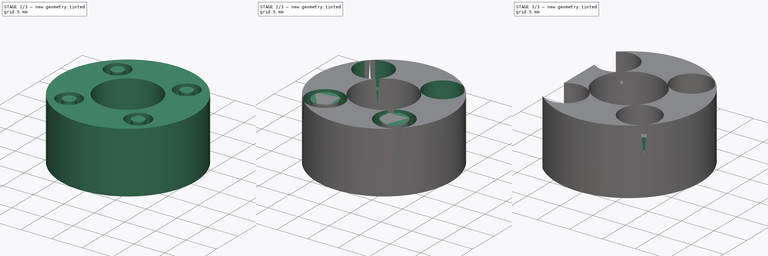
[diagram: build sequence overview — one tinted view per stage of 3, left to right]
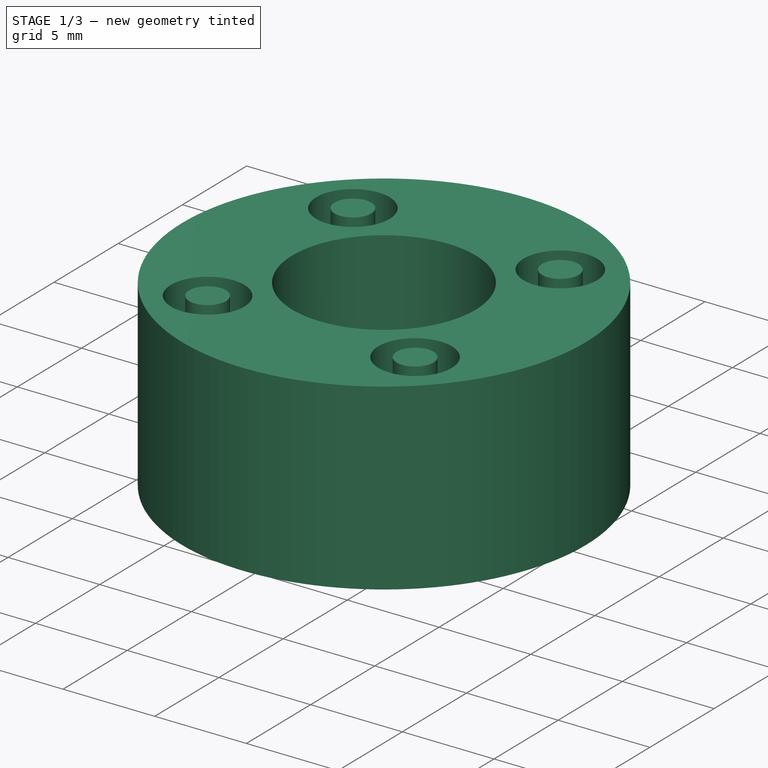
[diagram: stage 1 of 3 — iso view after this stage's code; geometry added in this stage tinted green]
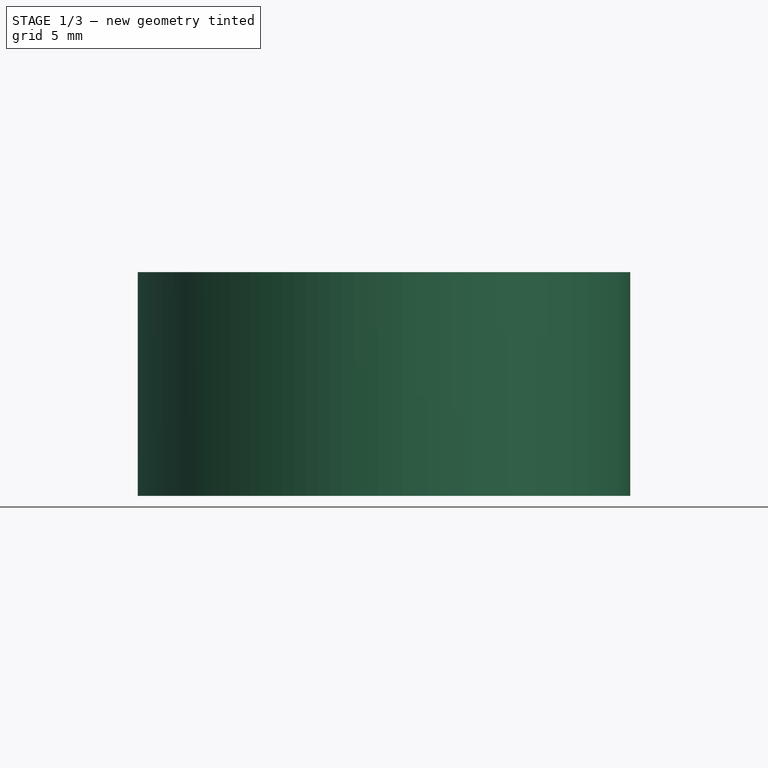
[diagram: stage 1 of 3 — front view after this stage's code; geometry added in this stage tinted green]
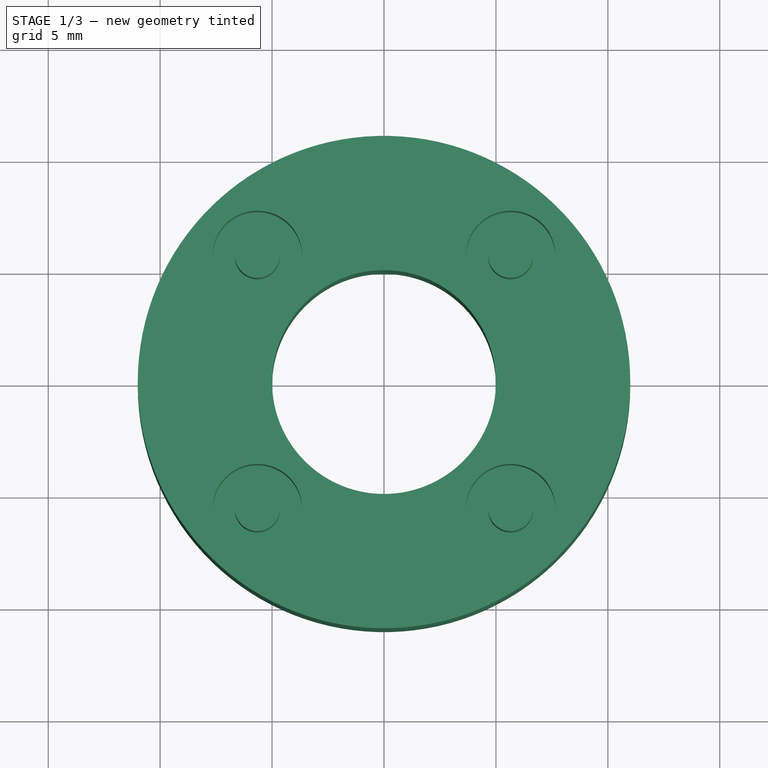
[diagram: stage 1 of 3 — top view after this stage's code; geometry added in this stage tinted green]
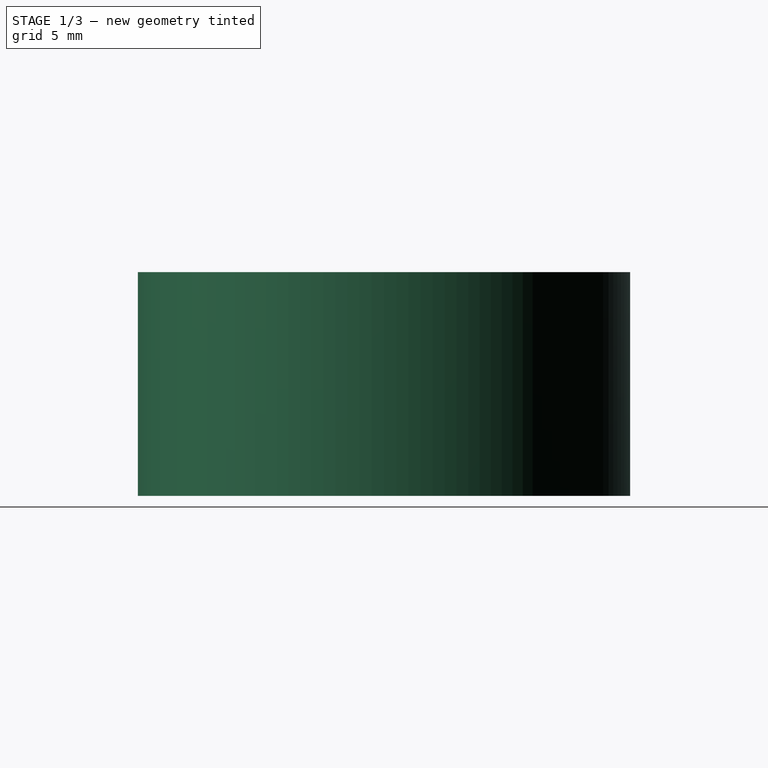
[diagram: stage 1 of 3 — right view after this stage's code; geometry added in this stage tinted green]
FCSTD DOCUMENT  (FreeCAD 0.18R4 (GitTag))
Label: ZAntiWobbler2
License: All rights reserved
LicenseURL: http://en.wikipedia.org/wiki/All_rights_reserved
objects: PartDesign::Pocket×7, Sketcher::SketchObject×4, Spreadsheet::Sheet×1, PartDesign::Pad×1, PartDesign::Body×1
note: 21 computed .brp shape members not serialized (recipe doc carries the construction recipe); baked Part::Feature solids carry a one-line shape summary decoded from their .brp

FEATURE [Spreadsheet::Sheet] Spreadsheet  label="Parameters"
  cells = A1=ZScrewRadiusWithStopScrew; B1(ZScrewRadiusWithStopScrew)==5mm; A2=M3ThreadRadius; B2(M3ThreadRadius)==2mm; A3=M3HeadRadius; B3(M3HeadRadius)==1mm; A4=M3HeadHeight; B4(M3HeadHeight)==4mm; A5=AntiWobblerHeight; B5(AntiWobblerHeight)==10mm; A6=AntiWobblerRadius; B6(AntiWobblerRadius)==11mm; A7=AntiWobblerRadiusToCut; B7(AntiWobblerRadiusToCut)==7.55mm; A8=AntiWobblerScrewSeparation; B8(AntiWobblerScrewSeparation)==16mm
FEATURE [Sketcher::SketchObject] Sketch
  MapMode = 5
  Support = -> [XY_Plane]
  expr: Constraints[1] = Parameters.AntiWobblerRadius
  sketch-geometry (1):
    g0: Circle CenterX=0 CenterY=0 CenterZ=0 NormalX=0 NormalY=0 NormalZ=1 AngleXU=0 Radius=11
  constraints (2):
    c: Coincident(g0,g-1)
    c: Radius(g0) = 11
FEATURE [PartDesign::Pad] Pad
  Length = 10
  Length2 = 100
  Profile = -> Sketch
  Type = 0
  expr: Length = Parameters.AntiWobblerHeight
FEATURE [Sketcher::SketchObject] Sketch001
  MapMode = 5
  Placement = pos=(0,0,10) rot=(0,0,1;0rad)
  Support = -> [Pad]
  expr: Constraints[1] = Parameters.ZScrewRadiusWithStopScrew
  sketch-geometry (1):
    g0: Circle CenterX=0 CenterY=0 CenterZ=0 NormalX=0 NormalY=0 NormalZ=1 AngleXU=0 Radius=5
  constraints (2):
    c: Coincident(g0,g-1)
    c: Radius(g0) = 5
FEATURE [PartDesign::Pocket] Pocket
  BaseFeature = -> Pad
  Length = 5
  Length2 = 100
  Profile = -> Sketch001
  Type = 1
FEATURE [Sketcher::SketchObject] Sketch002
  MapMode = 5
  Placement = pos=(0,0,10) rot=(0,0,1;0rad)
  Support = -> [Pocket]
  expr: Constraints[20] = Parameters.AntiWobblerScrewSeparation
  expr: Constraints[7] = Parameters.M3ThreadRadius
  expr: Constraints[4] = Parameters.M3ThreadRadius
  expr: Constraints[8] = Parameters.M3HeadRadius
  expr: Constraints[11] = Parameters.M3HeadRadius
  expr: Constraints[10] = Parameters.M3ThreadRadius
  expr: Constraints[5] = Parameters.M3HeadRadius
  expr: Constraints[2] = Parameters.M3HeadRadius
  expr: Constraints[1] = Parameters.M3ThreadRadius
  sketch-geometry (10):
    g0: Circle CenterX=-5.65685 CenterY=5.65685 CenterZ=0 NormalX=0 NormalY=0 NormalZ=1 AngleXU=0 Radius=2
    g1: Circle CenterX=-5.65685 CenterY=5.65685 CenterZ=0 NormalX=0 NormalY=0 NormalZ=1 AngleXU=0 Radius=1
    g2: Circle CenterX=5.65685 CenterY=5.65685 CenterZ=0 NormalX=0 NormalY=0 NormalZ=1 AngleXU=0 Radius=2
    g3: Circle CenterX=5.65685 CenterY=5.65685 CenterZ=0 NormalX=0 NormalY=0 NormalZ=1 AngleXU=0 Radius=1
    g4: Circle CenterX=5.65685 CenterY=-5.65685 CenterZ=0 NormalX=0 NormalY=0 NormalZ=1 AngleXU=0 Radius=1
    g5: Circle CenterX=5.65685 CenterY=-5.65685 CenterZ=0 NormalX=0 NormalY=0 NormalZ=1 AngleXU=0 Radius=2
    g6: Circle CenterX=-5.65685 CenterY=-5.65685 CenterZ=0 NormalX=0 NormalY=0 NormalZ=1 AngleXU=0 Radius=1
    g7: Circle CenterX=-5.65685 CenterY=-5.65685 CenterZ=0 NormalX=0 NormalY=0 NormalZ=1 AngleXU=0 Radius=2
    g8: LineSegment [constr] StartX=-5.65685 StartY=5.65685 StartZ=0 EndX=5.65685 EndY=-5.65685 EndZ=0
    g9: LineSegment [constr] StartX=5.65685 StartY=5.65685 StartZ=0 EndX=-5.65685 EndY=-5.65685 EndZ=0
  constraints (21):
    c: Coincident(g1,g0)
    c: Radius(g0) = 2
    c: Radius(g1) = 1
    c: Coincident(g3,g2)
    c: Radius(g2) = 2
    c: Radius(g3) = 1
    c: Coincident(g6,g7)
    c: Radius(g7) = 2
    c: Radius(g6) = 1
    c: Coincident(g4,g5)
    c: Radius(g5) = 2
    c: Radius(g4) = 1
    c: Symmetric(g0,g2,g-2)
    c: Symmetric(g4,g6,g-2)
    c: Symmetric(g2,g4,g-1)
    c: Coincident(g0,g8)
    c: Coincident(g9,g2)
    c: Coincident(g9,g6)
    c: Coincident(g8,g4)
    c: Perpendicular(g9,g8)
    c: Distance(g0,g4) = 16
FEATURE [PartDesign::Pocket] Pocket001
  BaseFeature = -> Pocket
  Length = 4
  Length2 = 100
  Profile = -> Sketch002
  Type = 0
  expr: Length = Parameters.M3HeadHeight
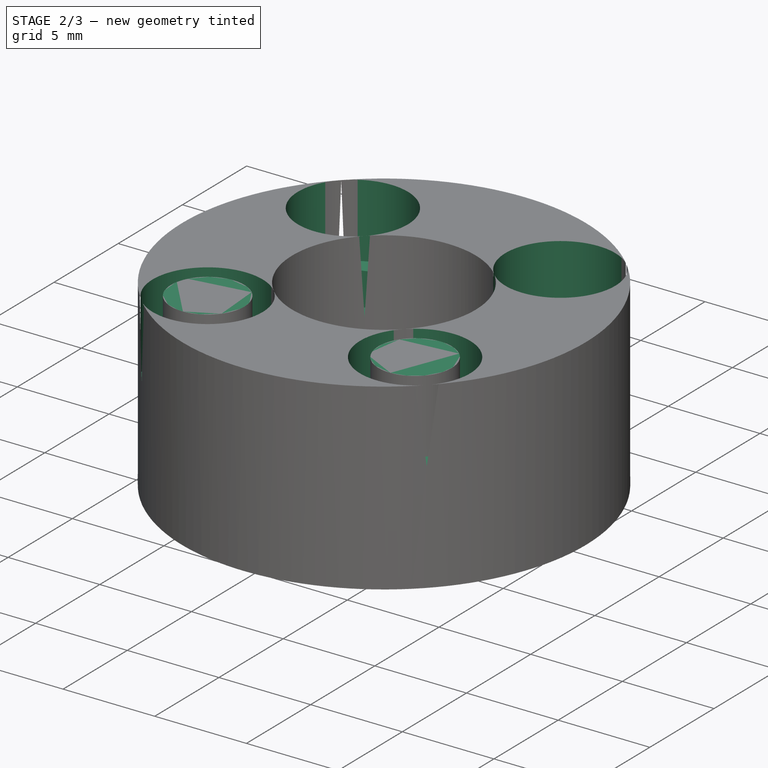
[diagram: stage 2 of 3 — iso view after this stage's code; geometry added in this stage tinted green]
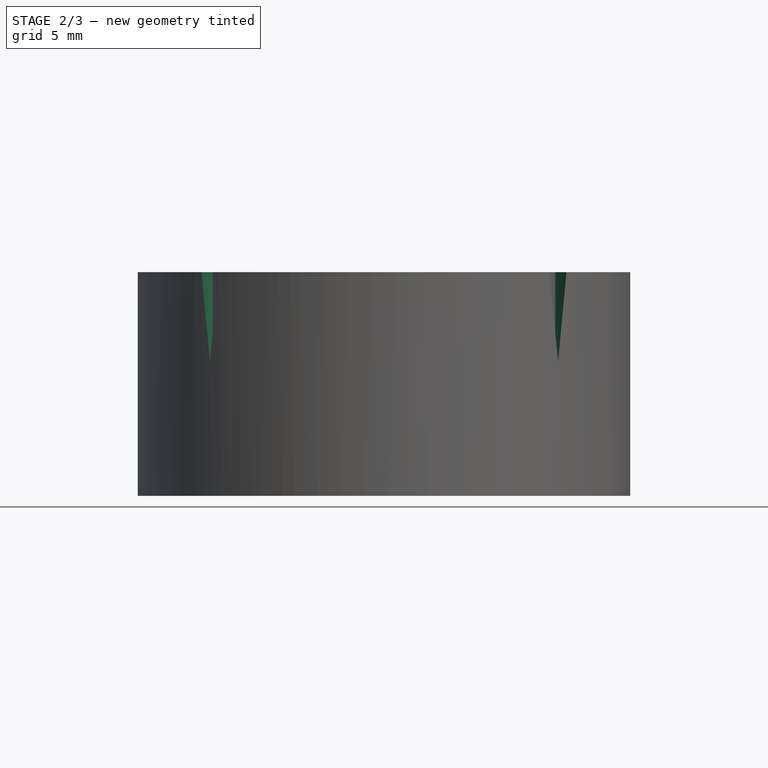
[diagram: stage 2 of 3 — front view after this stage's code; geometry added in this stage tinted green]
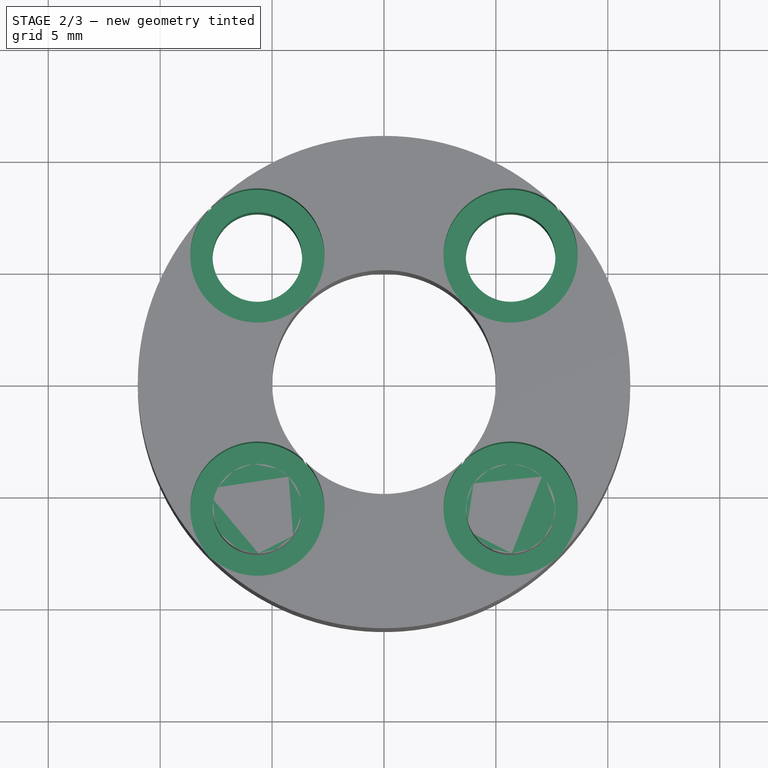
[diagram: stage 2 of 3 — top view after this stage's code; geometry added in this stage tinted green]
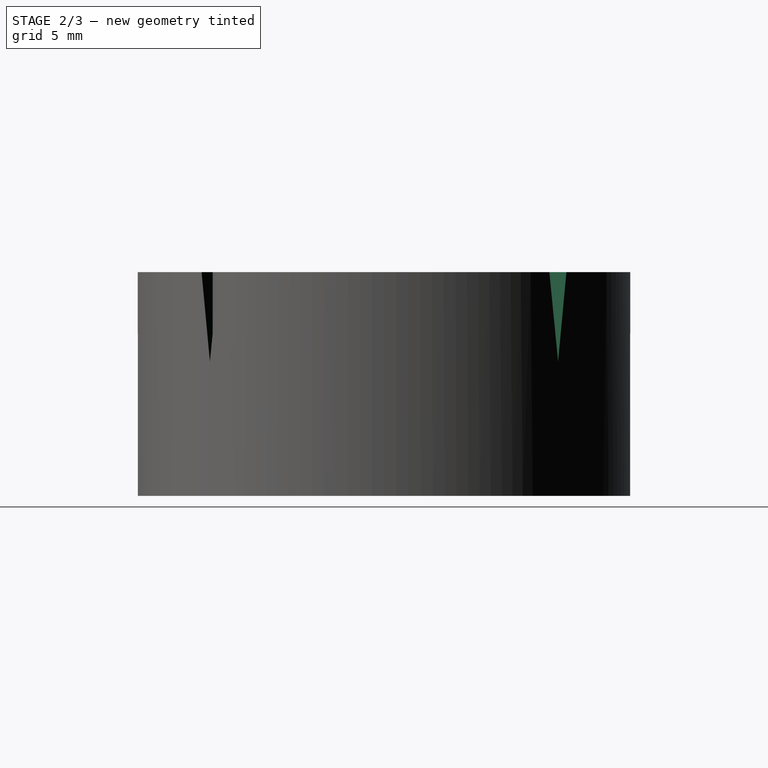
[diagram: stage 2 of 3 — right view after this stage's code; geometry added in this stage tinted green]
FEATURE [PartDesign::Pocket] Pocket002
  BaseFeature = -> Pocket001
  Length = 5
  Length2 = 100
  Profile = -> Pocket001 [Face3]
  Type = 1
FEATURE [PartDesign::Pocket] Pocket003
  BaseFeature = -> Pocket002
  Length = 5
  Length2 = 100
  Profile = -> Pocket002 [Face29]
  Type = 1
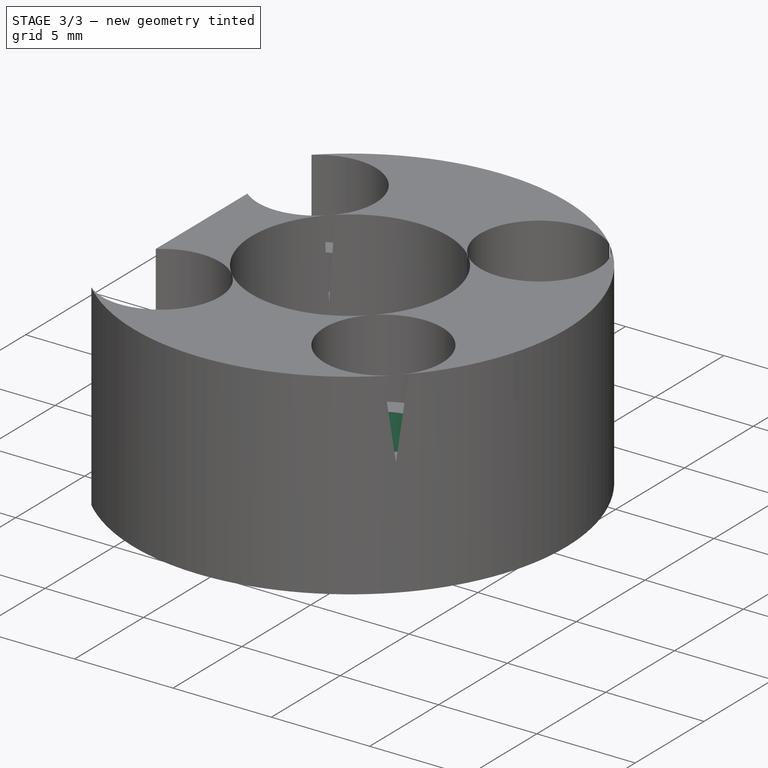
[diagram: stage 3 of 3 — iso view after this stage's code; geometry added in this stage tinted green]
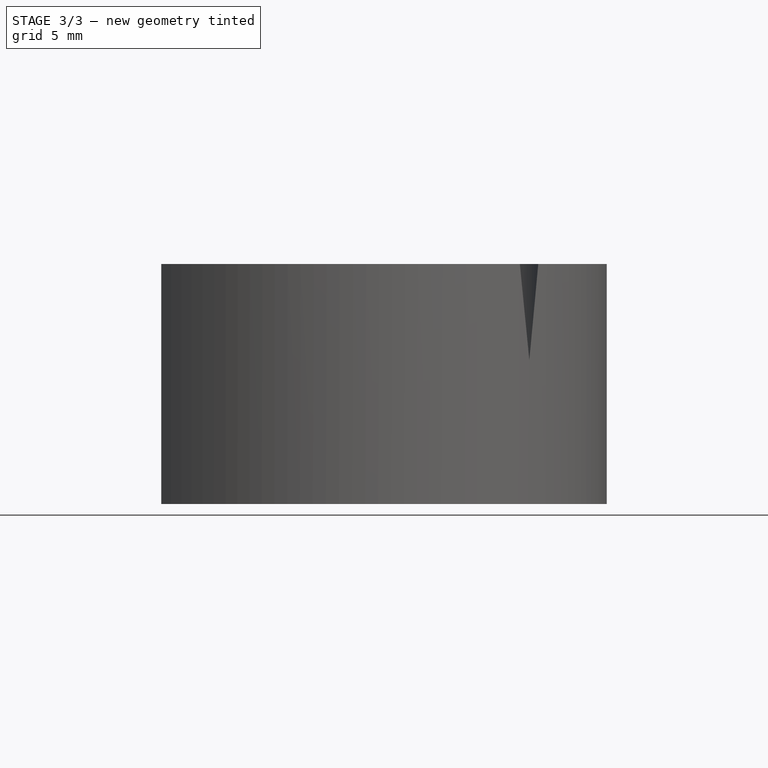
[diagram: stage 3 of 3 — front view after this stage's code; geometry added in this stage tinted green]
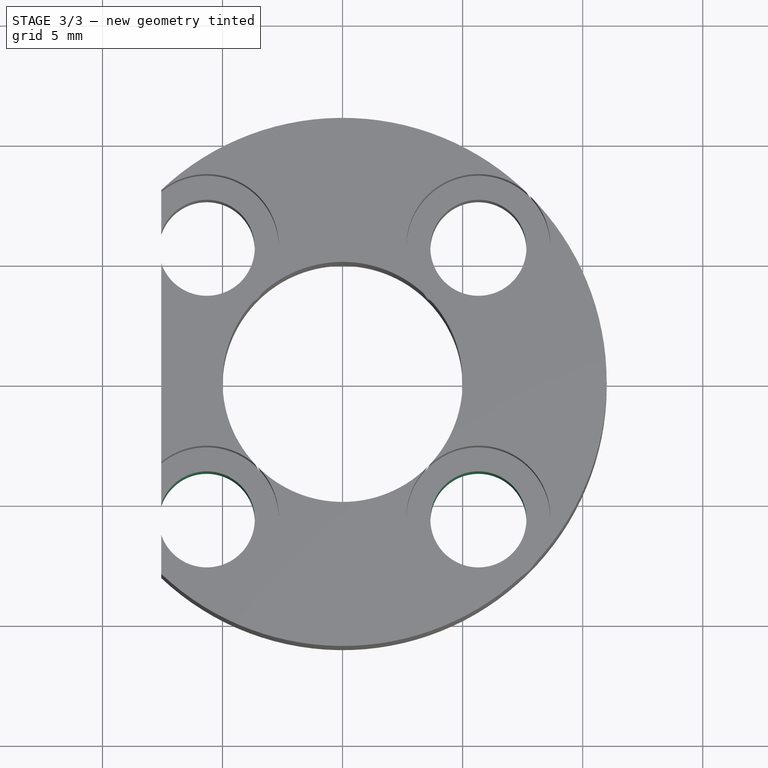
[diagram: stage 3 of 3 — top view after this stage's code; geometry added in this stage tinted green]
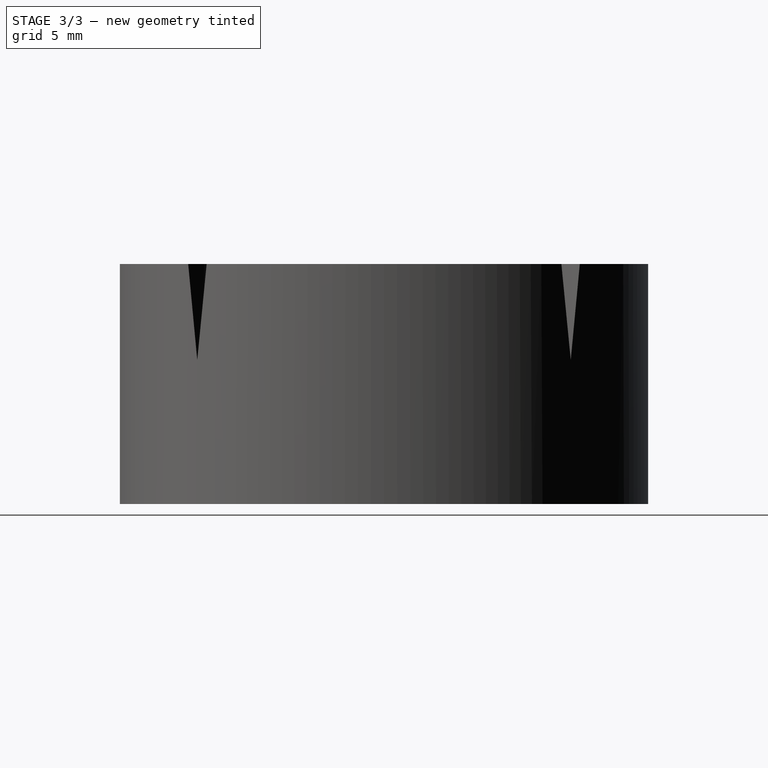
[diagram: stage 3 of 3 — right view after this stage's code; geometry added in this stage tinted green]
FEATURE [PartDesign::Pocket] Pocket004
  BaseFeature = -> Pocket003
  Length = 5
  Length2 = 100
  Profile = -> Pocket003 [Face29]
  Type = 1
FEATURE [PartDesign::Pocket] Pocket005
  BaseFeature = -> Pocket004
  Length = 5
  Length2 = 100
  Profile = -> Pocket004 [Face28]
  Type = 1
FEATURE [Sketcher::SketchObject] Sketch003
  MapMode = 5
  Placement = pos=(0,0,10) rot=(0,0,1;0rad)
  Support = -> [Pocket005]
  expr: Constraints[10] = Parameters.AntiWobblerRadius * 2
  expr: Constraints[9] = Parameters.AntiWobblerRadius - Parameters.AntiWobblerRadiusToCut + 3mm
  expr: Constraints[8] = Parameters.AntiWobblerRadiusToCut
  sketch-geometry (4):
    g0: LineSegment StartX=-14 StartY=10.9294 StartZ=0 EndX=-7.55 EndY=10.9294 EndZ=0
    g1: LineSegment StartX=-7.55 StartY=10.9294 StartZ=0 EndX=-7.55 EndY=-11.0706 EndZ=0
    g2: LineSegment StartX=-7.55 StartY=-11.0706 StartZ=0 EndX=-14 EndY=-11.0706 EndZ=0
    g3: LineSegment StartX=-14 StartY=-11.0706 StartZ=0 EndX=-14 EndY=10.9294 EndZ=0
  constraints (12):
    c: Coincident(g0,g1)
    c: Coincident(g1,g2)
    c: Coincident(g2,g3)
    c: Coincident(g3,g0)
    c: Horizontal(g0)
    c: Horizontal(g2)
    c: Vertical(g1)
    c: Vertical(g3)
    c: Distance(g-1,g1) = 7.55
    c: DistanceX(g0,g0) = 6.45
    c: DistanceY(g3,g3) = 22
    c: Distance(g-1,g1) = 13.4
FEATURE [PartDesign::Pocket] Pocket006
  BaseFeature = -> Pocket005
  Length = 5
  Length2 = 100
  Profile = -> Sketch003
  Type = 1
FEATURE [PartDesign::Body] Body
  Group = -> [Sketch,Pad,Sketch001,Pocket,Sketch002,Pocket001,Pocket002,Pocket003,Pocket004,Pocket005,Sketch003,Pocket006]
  Origin = -> Origin
  Tip = -> Pocket006
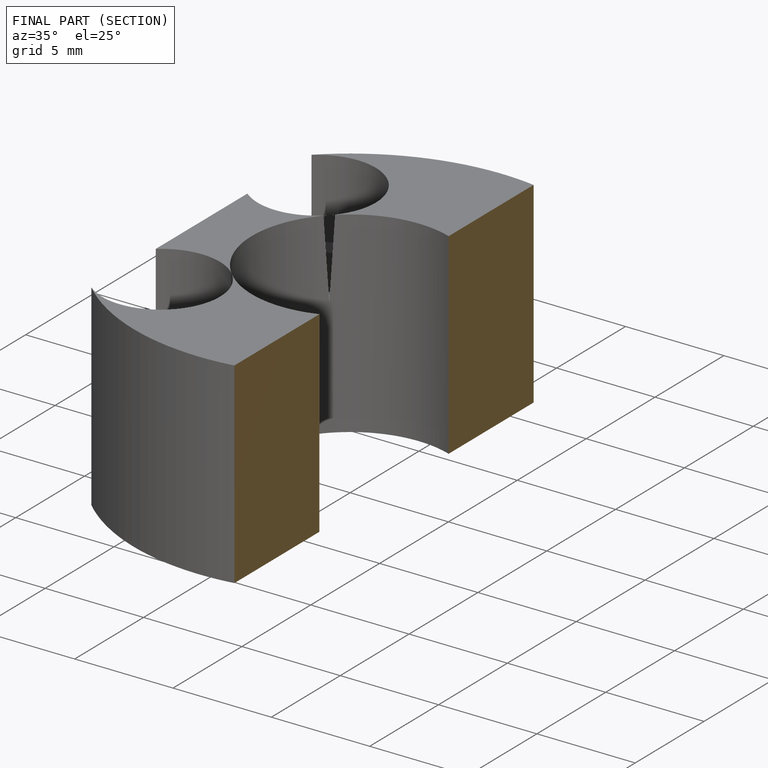
[diagram: finished part — half-section view (interior)]
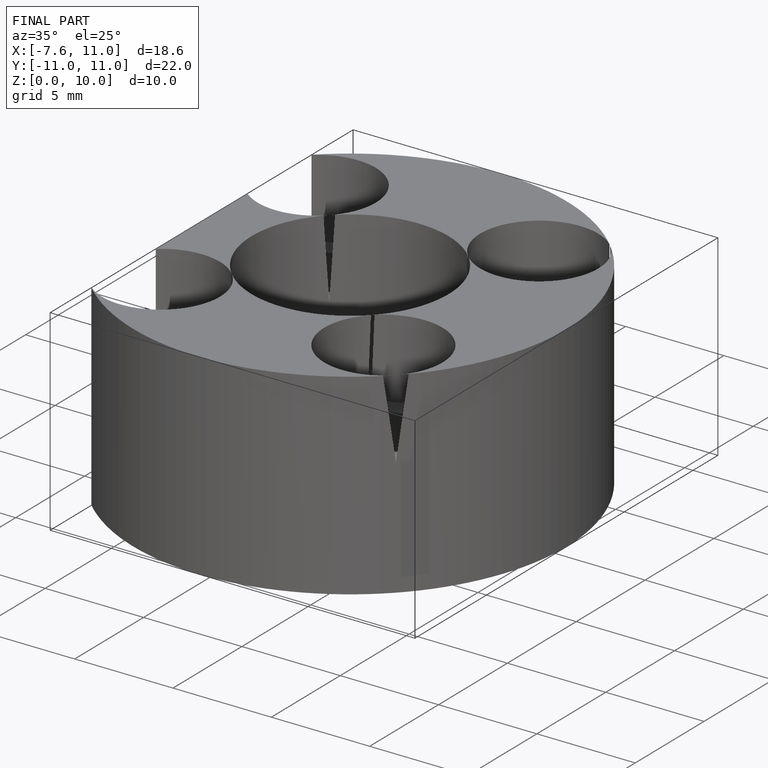
[diagram: finished part — iso view with bounding-box wireframe]
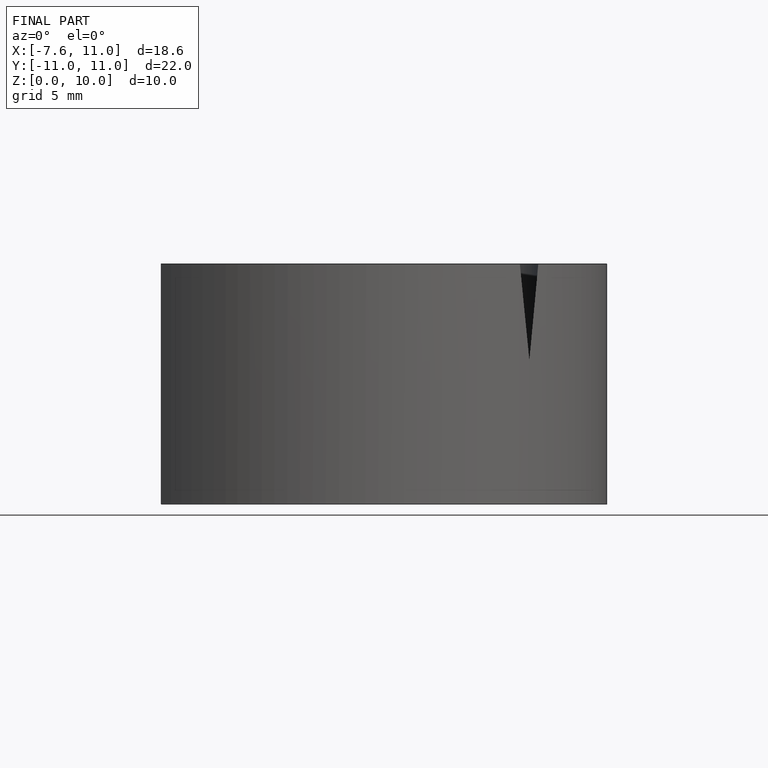
[diagram: finished part — front view with bounding-box wireframe]
